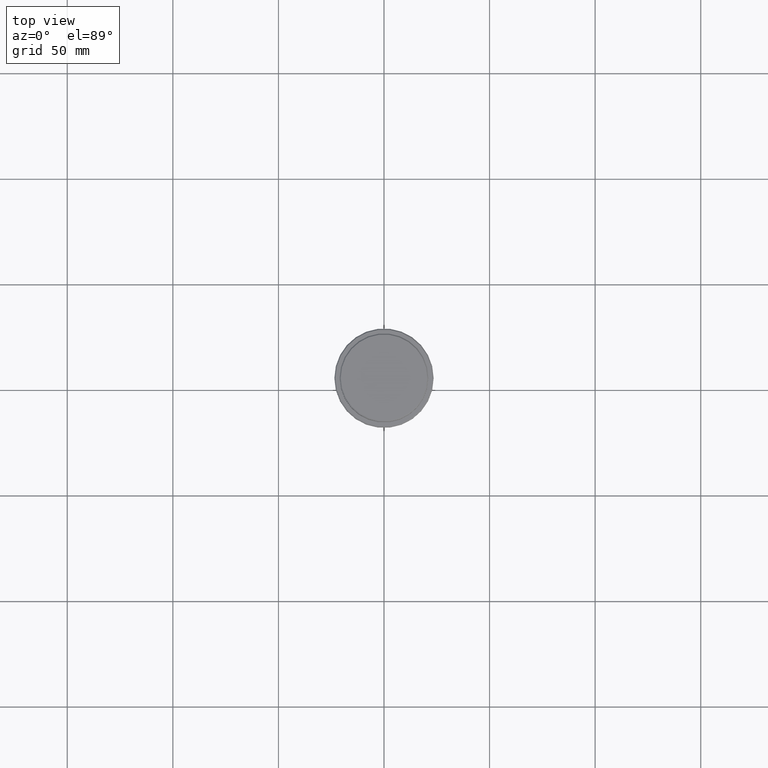
[diagram: clean part render]
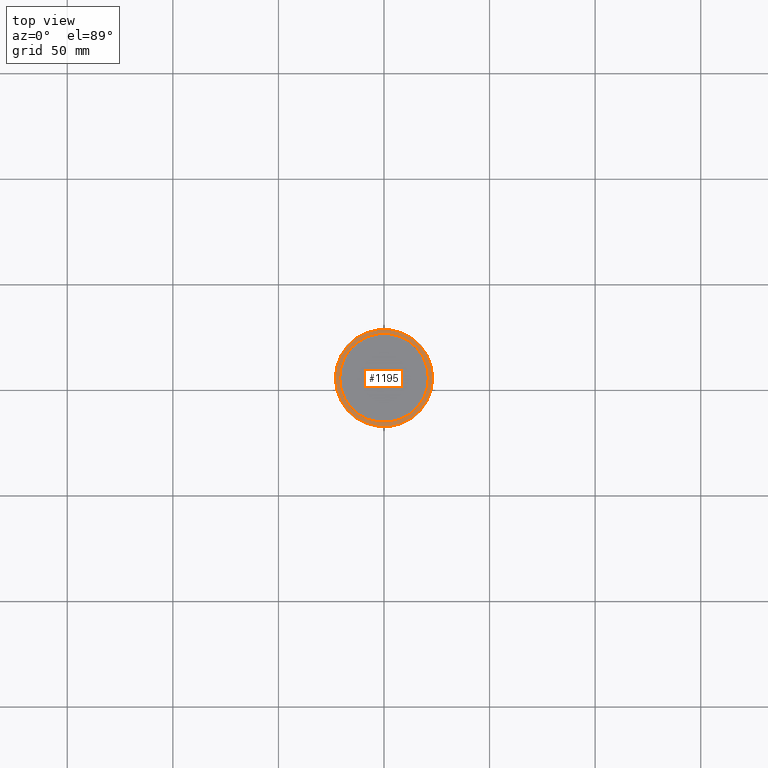
[diagram: same view with one face highlighted and labeled with its STEP entity id]
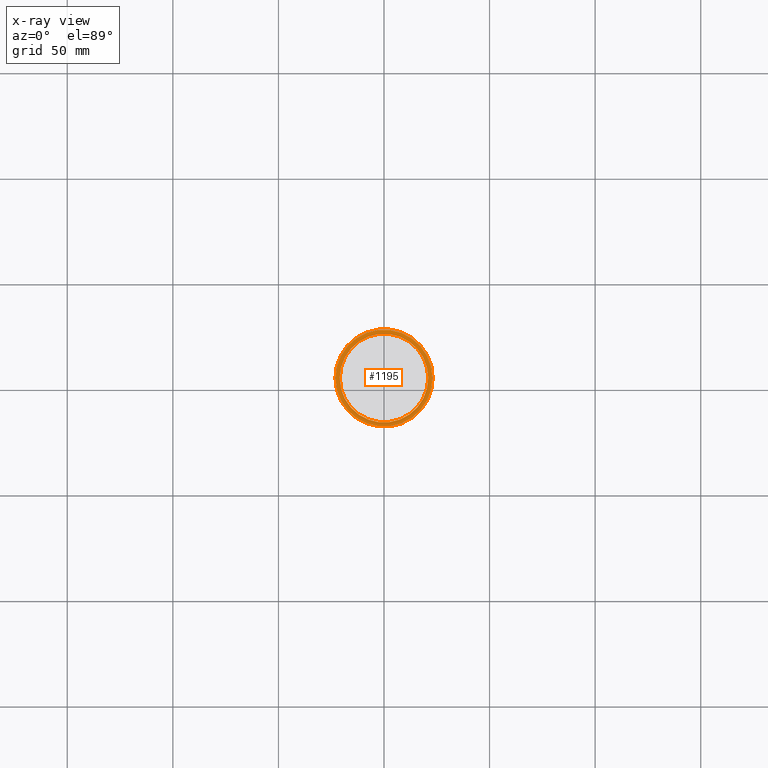
[diagram: x-ray of the same camera — body ghosted, the highlighted face saturated]
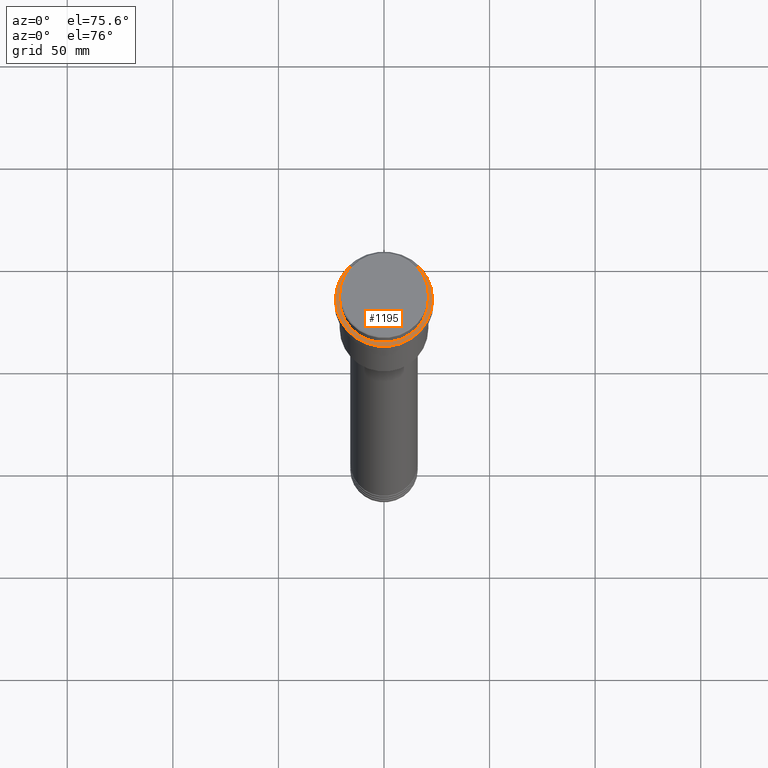
[diagram: same view with one face highlighted and labeled with its STEP entity id]
A machine part, top view. The second image highlights one B-rep face of the part: STEP entity #1195.
The next image is the same camera in x-ray: the body ghosted, the highlighted face saturated — about 0% of this face is hidden behind the body in this view.
A second angle (auxiliary view) of the same face is appended — the face is thin or edge-on in the first view.
In plain terms, the highlighted planar face has unit normal (0, -0, 1).
Its self-contained STEP definition (entity closure, byte-faithful):
#3 = AXIS2_PLACEMENT_3D ( 'NONE', #214, #322, #993 ) ;
#15 = CARTESIAN_POINT ( 'NONE',  ( 0.000000000000000000, 0.000000000000000000, -9.000000000000001776 ) ) ;
#27 = AXIS2_PLACEMENT_3D ( 'NONE', #614, #57, #500 ) ;
#55 = EDGE_LOOP ( 'NONE', ( #964, #1199 ) ) ;
#56 = CIRCLE ( 'NONE', #3, 20.99999999999999289 ) ;
#57 = DIRECTION ( 'NONE',  ( 0.000000000000000000, -0.000000000000000000, 1.000000000000000000 ) ) ;
#121 = DIRECTION ( 'NONE',  ( 0.000000000000000000, 0.000000000000000000, -1.000000000000000000 ) ) ;
#127 = AXIS2_PLACEMENT_3D ( 'NONE', #627, #406, #1389 ) ;
#136 = CARTESIAN_POINT ( 'NONE',  ( 0.000000000000000000, 0.000000000000000000, -9.000000000000001776 ) ) ;
#181 = ORIENTED_EDGE ( 'NONE', *, *, #655, .T. ) ;
#214 = CARTESIAN_POINT ( 'NONE',  ( 0.000000000000000000, 0.000000000000000000, -9.000000000000001776 ) ) ;
#249 = CARTESIAN_POINT ( 'NONE',  ( -23.00000000000002487, 0.000000000000000000, -9.000000000000001776 ) ) ;
#322 = DIRECTION ( 'NONE',  ( 0.000000000000000000, 0.000000000000000000, -1.000000000000000000 ) ) ;
#348 = DIRECTION ( 'NONE',  ( -0.000000000000000000, -0.000000000000000000, 1.000000000000000000 ) ) ;
#383 = FACE_BOUND ( 'NONE', #1160, .T. ) ;
#406 = DIRECTION ( 'NONE',  ( -0.000000000000000000, -0.000000000000000000, 1.000000000000000000 ) ) ;
#428 = CIRCLE ( 'NONE', #127, 23.00000000000002487 ) ;
#456 = CARTESIAN_POINT ( 'NONE',  ( 20.99999999999999289, 0.000000000000000000, -9.000000000000001776 ) ) ;
#481 = FACE_OUTER_BOUND ( 'NONE', #55, .T. ) ;
#500 = DIRECTION ( 'NONE',  ( 1.000000000000000000, 0.000000000000000000, 0.000000000000000000 ) ) ;
#550 = DIRECTION ( 'NONE',  ( 1.000000000000000000, 0.000000000000000000, 0.000000000000000000 ) ) ;
#571 = VERTEX_POINT ( 'NONE', #1408 ) ;
#614 = CARTESIAN_POINT ( 'NONE',  ( 0.000000000000000000, 20.49999999999999645, -9.000000000000001776 ) ) ;
#627 = CARTESIAN_POINT ( 'NONE',  ( 0.000000000000000000, 0.000000000000000000, -9.000000000000001776 ) ) ;
#655 = EDGE_CURVE ( 'NONE', #739, #571, #56, .T. ) ;
#676 = CIRCLE ( 'NONE', #1355, 20.99999999999999289 ) ;
#739 = VERTEX_POINT ( 'NONE', #456 ) ;
#780 = CARTESIAN_POINT ( 'NONE',  ( 23.00000000000002487, 2.847303808017597717E-15, -9.000000000000001776 ) ) ;
#800 = PLANE ( 'NONE',  #27 ) ;
#847 = EDGE_CURVE ( 'NONE', #1409, #1049, #428, .T. ) ;
#964 = ORIENTED_EDGE ( 'NONE', *, *, #1060, .T. ) ;
#974 = AXIS2_PLACEMENT_3D ( 'NONE', #15, #348, #550 ) ;
#986 = DIRECTION ( 'NONE',  ( 1.000000000000000000, 0.000000000000000000, 0.000000000000000000 ) ) ;
#993 = DIRECTION ( 'NONE',  ( 1.000000000000000000, 0.000000000000000000, 0.000000000000000000 ) ) ;
#1049 = VERTEX_POINT ( 'NONE', #249 ) ;
#1060 = EDGE_CURVE ( 'NONE', #1049, #1409, #1065, .T. ) ;
#1065 = CIRCLE ( 'NONE', #974, 23.00000000000002487 ) ;
#1075 = EDGE_CURVE ( 'NONE', #571, #739, #676, .T. ) ;
#1160 = EDGE_LOOP ( 'NONE', ( #181, #1185 ) ) ;
#1185 = ORIENTED_EDGE ( 'NONE', *, *, #1075, .T. ) ;
#1195 = ADVANCED_FACE ( 'NONE', ( #481, #383 ), #800, .T. ) ;
#1199 = ORIENTED_EDGE ( 'NONE', *, *, #847, .T. ) ;
#1355 = AXIS2_PLACEMENT_3D ( 'NONE', #136, #121, #986 ) ;
#1389 = DIRECTION ( 'NONE',  ( 1.000000000000000000, 0.000000000000000000, 0.000000000000000000 ) ) ;
#1408 = CARTESIAN_POINT ( 'NONE',  ( -20.99999999999999289, 2.571758278209440872E-15, -9.000000000000001776 ) ) ;
#1409 = VERTEX_POINT ( 'NONE', #780 ) ;